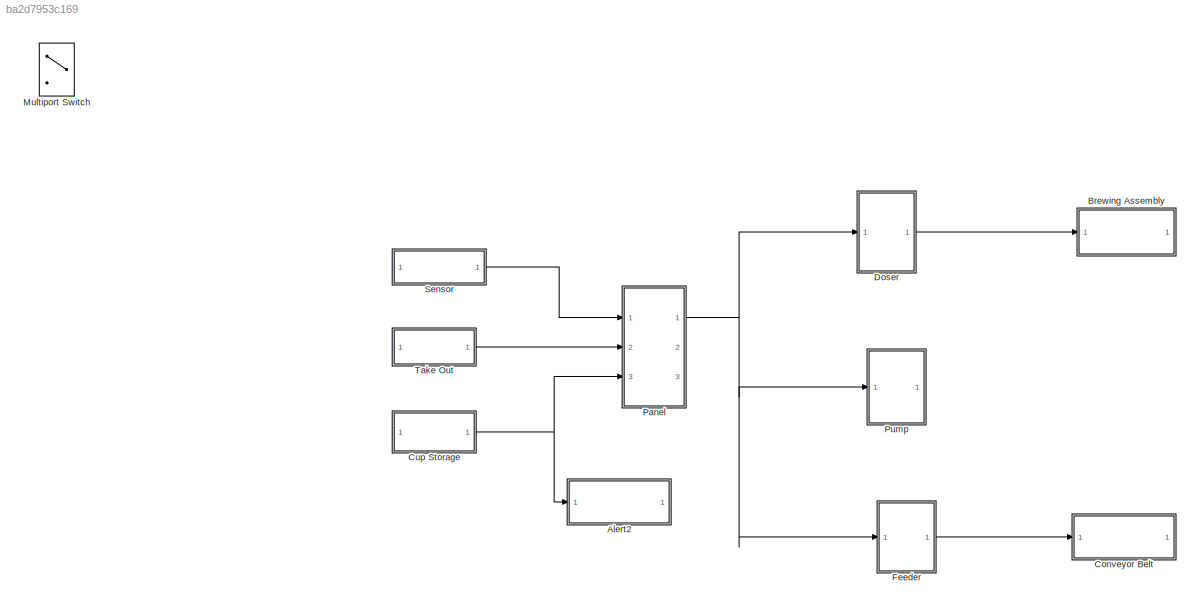
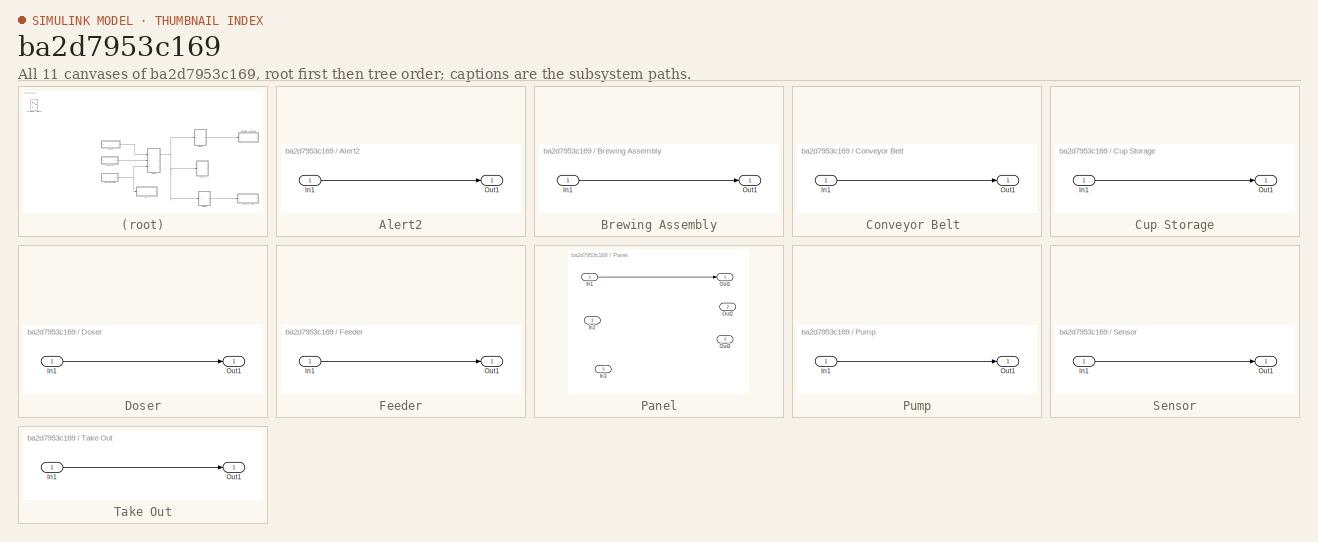
[diagram: thumbnail index - all 11 canvases of the model, root first then tree order]
MODEL slx_ba2d7953c169
KIND model
CONFIG AbsTol = auto
CONFIG FixedStep = auto
CONFIG MaxStep = auto
CONFIG MinStep = auto
CONFIG RelTol = 1e-3
CONFIG SampleTimeConstraint = Unconstrained
CONFIG Solver = ode45
CONFIG SolverMode = Auto
CONFIG SolverName = ode45
CONFIG StartTime = 0.0
CONFIG StopTime = 10.0
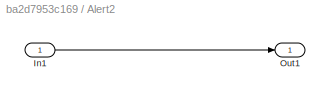
BLOCK [SubSystem] Alert2
  Ports = [1, 1]
  RequestExecContextInheritance = off
BLOCK [Inport] Alert2/In1
  IconDisplay = Port number
BLOCK [Outport] Alert2/Out1
  IconDisplay = Port number
BLOCK [SubSystem] Brewing Assembly
  Ports = [1, 1]
  RequestExecContextInheritance = off
BLOCK [Inport] Brewing Assembly/In1
  IconDisplay = Port number
BLOCK [Outport] Brewing Assembly/Out1
  IconDisplay = Port number
BLOCK [SubSystem] Conveyor Belt 
  Ports = [1, 1]
  RequestExecContextInheritance = off
BLOCK [Inport] Conveyor Belt /In1
  IconDisplay = Port number
BLOCK [Outport] Conveyor Belt /Out1
  IconDisplay = Port number
BLOCK [SubSystem] Cup Storage
  Ports = [1, 1]
  RequestExecContextInheritance = off
BLOCK [Inport] Cup Storage/In1
  IconDisplay = Port number
BLOCK [Outport] Cup Storage/Out1
  IconDisplay = Port number
BLOCK [SubSystem] Doser
  Ports = [1, 1]
  RequestExecContextInheritance = off
BLOCK [Inport] Doser/In1
  IconDisplay = Port number
BLOCK [Outport] Doser/Out1
  IconDisplay = Port number
BLOCK [SubSystem] Feeder
  Ports = [1, 1]
  RequestExecContextInheritance = off
BLOCK [Inport] Feeder/In1
  IconDisplay = Port number
BLOCK [Outport] Feeder/Out1
  IconDisplay = Port number
BLOCK [MultiPortSwitch] Multiport Switch
  InputSameDT = off
  Ports = [4, 1]
  SaturateOnIntegerOverflow = off
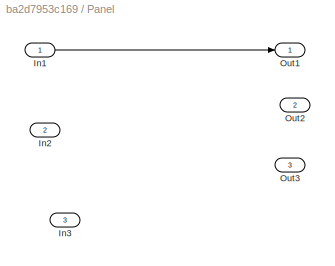
BLOCK [SubSystem] Panel
  Ports = [3, 3]
  RequestExecContextInheritance = off
BLOCK [Inport] Panel/In1
  IconDisplay = Port number
BLOCK [Inport] Panel/In2
  IconDisplay = Port number
  Port = 2
BLOCK [Inport] Panel/In3
  IconDisplay = Port number
  Port = 3
BLOCK [Outport] Panel/Out1
  IconDisplay = Port number
BLOCK [Outport] Panel/Out2
  IconDisplay = Port number
  Port = 2
BLOCK [Outport] Panel/Out3
  IconDisplay = Port number
  Port = 3
BLOCK [SubSystem] Pump
  Ports = [1, 1]
  RequestExecContextInheritance = off
BLOCK [Inport] Pump/In1
  IconDisplay = Port number
BLOCK [Outport] Pump/Out1
  IconDisplay = Port number
BLOCK [SubSystem] Sensor
  Ports = [1, 1]
  RequestExecContextInheritance = off
BLOCK [Inport] Sensor/In1
  IconDisplay = Port number
BLOCK [Outport] Sensor/Out1
  IconDisplay = Port number
BLOCK [SubSystem] Take Out
  Ports = [1, 1]
  RequestExecContextInheritance = off
BLOCK [Inport] Take Out/In1
  IconDisplay = Port number
BLOCK [Outport] Take Out/Out1
  IconDisplay = Port number
LINE Alert2/In1:1 -> Alert2/Out1:1
LINE Brewing Assembly/In1:1 -> Brewing Assembly/Out1:1
LINE Conveyor Belt /In1:1 -> Conveyor Belt /Out1:1
LINE Cup Storage/In1:1 -> Cup Storage/Out1:1
NET Cup Storage:1 -> Alert2:1, Panel:3
LINE Doser/In1:1 -> Doser/Out1:1
LINE Doser:1 -> Brewing Assembly:1
LINE Feeder/In1:1 -> Feeder/Out1:1
LINE Feeder:1 -> Conveyor Belt :1
LINE Panel/In1:1 -> Panel/Out1:1
NET Panel:1 -> Doser:1, Feeder:1, Pump:1
LINE Pump/In1:1 -> Pump/Out1:1
LINE Sensor/In1:1 -> Sensor/Out1:1
LINE Sensor:1 -> Panel:1
LINE Take Out/In1:1 -> Take Out/Out1:1
LINE Take Out:1 -> Panel:2
note: NET lines group one-source signal fan-out (src -> all destinations, sorted); 1:1 wires keep LINE
